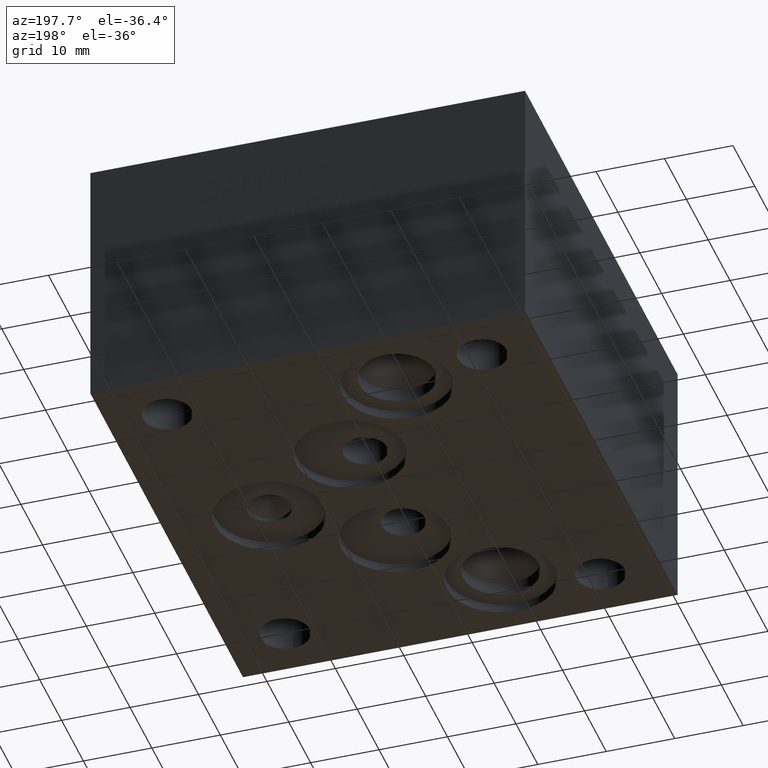
[diagram: clean part render]
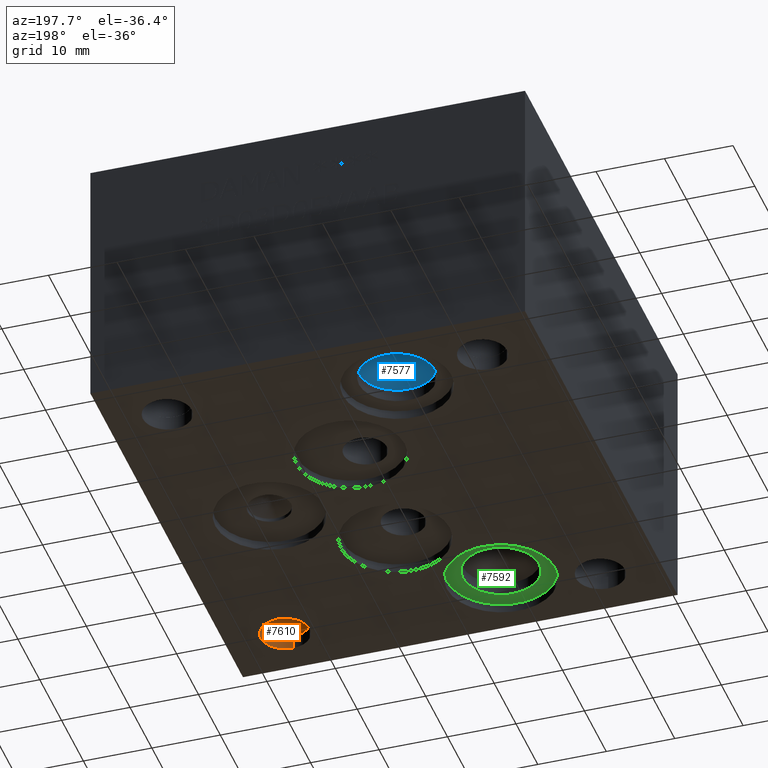
[diagram: same view with three faces highlighted in distinct colors, each labeled with its STEP entity id]
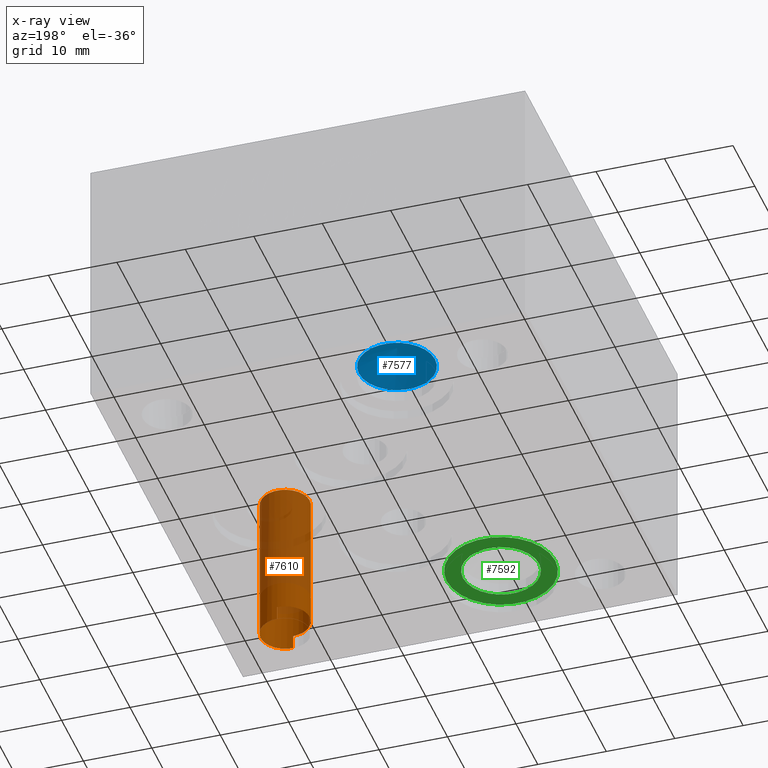
[diagram: x-ray of the same camera — body ghosted, the three highlighted faces saturated]
A machine part, auxiliary view with three faces highlighted in distinct colors.
The next image is the same camera in x-ray (body ghosted, the three faces saturated) — at least one of them is partly hidden behind the body in this view.
Their STEP definitions:

[orange] entity #7610 — the highlighted cylindrical surface (bore or boss wall) has radius 3.5687 mm, axis along (0, 0, 1).
#31=CYLINDRICAL_SURFACE('',#7970,3.5687);
#77=CIRCLE('',#7951,3.5687);
#86=CIRCLE('',#7967,3.5687);
#382=B_SPLINE_CURVE_WITH_KNOTS('',3,(#12673,#12674,#12675,#12676,#12677,
#12678,#12679,#12680,#12681,#12682,#12683,#12684),.UNSPECIFIED.,.F.,.F.,
(4,2,2,2,2,4),(0.538033015975326,0.538350466578014,0.672685361836246,0.807020257094478,
0.941223056318459,1.07542585554244),.UNSPECIFIED.);
#383=B_SPLINE_CURVE_WITH_KNOTS('',3,(#12687,#12688,#12689,#12690,#12691,
#12692,#12693,#12694,#12695,#12696,#12697,#12698),.UNSPECIFIED.,.F.,.F.,
(4,2,2,2,2,4),(1.07542585554244,1.20962865476642,1.3438314539904,1.47816634924863,
1.61250124450687,1.61281869510955),.UNSPECIFIED.);
#845=FACE_OUTER_BOUND('',#1288,.T.);
#1288=EDGE_LOOP('',(#6537,#6538,#6539,#6540,#6541,#6542,#6543,#6544));
#2066=LINE('',#12701,#2837);
#2067=LINE('',#12703,#2838);
#2082=LINE('',#12852,#2853);
#2837=VECTOR('',#9305,10.);
#2838=VECTOR('',#9306,10.);
#2853=VECTOR('',#9397,3.5687);
#3506=VERTEX_POINT('',#12671);
#3507=VERTEX_POINT('',#12672);
#3508=VERTEX_POINT('',#12685);
#3509=VERTEX_POINT('',#12700);
#3510=VERTEX_POINT('',#12702);
#3535=VERTEX_POINT('',#12845);
#4506=EDGE_CURVE('',#3506,#3507,#382,.T.);
#4508=EDGE_CURVE('',#3507,#3508,#383,.T.);
#4509=EDGE_CURVE('',#3508,#3509,#2066,.T.);
#4510=EDGE_CURVE('',#3510,#3506,#2067,.T.);
#4535=EDGE_CURVE('',#3510,#3509,#77,.T.);
#4548=EDGE_CURVE('',#3535,#3535,#86,.T.);
#4551=EDGE_CURVE('',#3535,#3507,#2082,.T.);
#6537=ORIENTED_EDGE('',*,*,#4548,.T.);
#6538=ORIENTED_EDGE('',*,*,#4551,.T.);
#6539=ORIENTED_EDGE('',*,*,#4508,.T.);
#6540=ORIENTED_EDGE('',*,*,#4509,.T.);
#6541=ORIENTED_EDGE('',*,*,#4535,.F.);
#6542=ORIENTED_EDGE('',*,*,#4510,.T.);
#6543=ORIENTED_EDGE('',*,*,#4506,.T.);
#6544=ORIENTED_EDGE('',*,*,#4551,.F.);
#7610=ADVANCED_FACE('',(#845),#31,.F.);
#7951=AXIS2_PLACEMENT_3D('',#12818,#9352,#9353);
#7967=AXIS2_PLACEMENT_3D('',#12846,#9388,#9389);
#7970=AXIS2_PLACEMENT_3D('',#12851,#9395,#9396);
#9305=DIRECTION('',(0.,0.,-1.));
#9306=DIRECTION('',(0.,0.,1.));
#9352=DIRECTION('center_axis',(0.,0.,1.));
#9353=DIRECTION('ref_axis',(1.,0.,0.));
#9388=DIRECTION('center_axis',(0.,0.,1.));
#9389=DIRECTION('ref_axis',(1.,0.,0.));
#9395=DIRECTION('center_axis',(0.,0.,1.));
#9396=DIRECTION('ref_axis',(1.,0.,0.));
#9397=DIRECTION('',(0.,0.,-1.));
#12671=CARTESIAN_POINT('',(54.790975,4.38150141236683,2.06039));
#12672=CARTESIAN_POINT('',(51.22545,7.9502,2.06405617420935));
#12673=CARTESIAN_POINT('Ctrl Pts',(54.790975,4.38150141236683,2.06039));
#12674=CARTESIAN_POINT('Ctrl Pts',(54.7899165000759,4.38150235409311,2.06039108741142));
#12675=CARTESIAN_POINT('Ctrl Pts',(54.7888581664421,4.38150376660925,2.06039217465287));
#12676=CARTESIAN_POINT('Ctrl Pts',(54.3400179609623,4.38230241592601,2.06085327505089));
#12677=CARTESIAN_POINT('Ctrl Pts',(53.8625270240116,4.47258051978984,2.06134397868591));
#12678=CARTESIAN_POINT('Ctrl Pts',(52.9843962434282,4.83787772248742,2.0622467101523));
#12679=CARTESIAN_POINT('Ctrl Pts',(52.5837564003666,5.11289682271574,2.06265872917889));
#12680=CARTESIAN_POINT('Ctrl Pts',(51.951604093075,5.74664201108035,2.06330896651219));
#12681=CARTESIAN_POINT('Ctrl Pts',(51.6777811021675,6.14753833325503,2.06359070416672));
#12682=CARTESIAN_POINT('Ctrl Pts',(51.3147040549283,7.02564599538287,2.06396431242518));
#12683=CARTESIAN_POINT('Ctrl Pts',(51.22545,7.50285733592006,2.06405617420935));
#12684=CARTESIAN_POINT('Ctrl Pts',(51.22545,7.9502,2.06405617420935));
#12685=CARTESIAN_POINT('',(54.790975,11.5188985876332,2.06039));
#12687=CARTESIAN_POINT('Ctrl Pts',(51.22545,7.9502,2.06405617420935));
#12688=CARTESIAN_POINT('Ctrl Pts',(51.22545,8.39754266407994,2.06405617420935));
#12689=CARTESIAN_POINT('Ctrl Pts',(51.3147040549282,8.87475400461713,2.06396431242517));
#12690=CARTESIAN_POINT('Ctrl Pts',(51.6777811021674,9.75286166674497,2.06359070416671));
#12691=CARTESIAN_POINT('Ctrl Pts',(51.951604093075,10.1537579889197,2.06330896651217));
#12692=CARTESIAN_POINT('Ctrl Pts',(52.5837564003666,10.7875031772843,2.06265872917888));
#12693=CARTESIAN_POINT('Ctrl Pts',(52.9843962434282,11.0625222775126,2.0622467101523));
#12694=CARTESIAN_POINT('Ctrl Pts',(53.8625270240116,11.4278194802102,2.06134397868591));
#12695=CARTESIAN_POINT('Ctrl Pts',(54.3400179609623,11.518097584074,2.06085327505089));
#12696=CARTESIAN_POINT('Ctrl Pts',(54.7888581664421,11.5188962333908,2.06039217465287));
#12697=CARTESIAN_POINT('Ctrl Pts',(54.7899165000759,11.5188976459069,2.06039108741142));
#12698=CARTESIAN_POINT('Ctrl Pts',(54.790975,11.5188985876332,2.06039));
#12700=CARTESIAN_POINT('',(54.790975,11.5188985876332,0.));
#12701=CARTESIAN_POINT('',(54.790975,11.5188985876332,1.030195));
#12702=CARTESIAN_POINT('',(54.790975,4.38150141236683,0.));
#12703=CARTESIAN_POINT('',(54.790975,4.38150141236683,1.030195));
#12818=CARTESIAN_POINT('Origin',(54.79415,7.9502,0.));
#12845=CARTESIAN_POINT('',(51.22545,7.9502,22.225));
#12846=CARTESIAN_POINT('Origin',(54.79415,7.9502,22.225));
#12851=CARTESIAN_POINT('Origin',(54.79415,7.9502,-63.6982440909469));
#12852=CARTESIAN_POINT('',(51.22545,7.9502,-63.6982440909469));

[blue] entity #7577 — the highlighted conical surface has half-angle 60 deg.
#47=CIRCLE('',#7897,5.5626);
#115=CONICAL_SURFACE('',#7896,2.7813,1.0471975511966);
#812=FACE_OUTER_BOUND('',#1238,.T.);
#1238=EDGE_LOOP('',(#6407,#6408,#6409));
#2055=LINE('',#12608,#2826);
#2826=VECTOR('',#9224,2.7813);
#3485=VERTEX_POINT('',#12605);
#3486=VERTEX_POINT('',#12607);
#4477=EDGE_CURVE('',#3485,#3485,#47,.T.);
#4478=EDGE_CURVE('',#3485,#3486,#2055,.T.);
#6407=ORIENTED_EDGE('',*,*,#4477,.T.);
#6408=ORIENTED_EDGE('',*,*,#4478,.T.);
#6409=ORIENTED_EDGE('',*,*,#4478,.F.);
#7577=ADVANCED_FACE('',(#812),#115,.F.);
#7896=AXIS2_PLACEMENT_3D('',#12604,#9220,#9221);
#7897=AXIS2_PLACEMENT_3D('',#12606,#9222,#9223);
#9220=DIRECTION('center_axis',(0.,0.,-1.));
#9221=DIRECTION('ref_axis',(1.,0.,0.));
#9222=DIRECTION('center_axis',(0.,0.,-1.));
#9223=DIRECTION('ref_axis',(1.,0.,0.));
#9224=DIRECTION('',(0.866025403784439,-1.06057523872491E-16,0.5));
#12604=CARTESIAN_POINT('Origin',(22.2504,58.7502,4.81735430369711));
#12605=CARTESIAN_POINT('',(16.6878,58.7502,3.21157));
#12606=CARTESIAN_POINT('Origin',(22.2504,58.7502,3.21157));
#12607=CARTESIAN_POINT('',(22.2504,58.7502,6.42313860739421));
#12608=CARTESIAN_POINT('',(19.4691,58.7502,4.81735430369711));

[green] entity #7592 — the highlighted planar face has unit normal (0, 0, -1).
#50=CIRCLE('',#7903,5.5626);
#64=CIRCLE('',#7928,7.9375);
#163=FACE_BOUND('',#1258,.T.);
#827=FACE_OUTER_BOUND('',#1257,.T.);
#1257=EDGE_LOOP('',(#6456));
#1258=EDGE_LOOP('',(#6457));
#3490=VERTEX_POINT('',#12619);
#3505=VERTEX_POINT('',#12666);
#4483=EDGE_CURVE('',#3490,#3490,#50,.T.);
#4505=EDGE_CURVE('',#3505,#3505,#64,.T.);
#6456=ORIENTED_EDGE('',*,*,#4505,.T.);
#6457=ORIENTED_EDGE('',*,*,#4483,.T.);
#6912=PLANE('',#7929);
#7592=ADVANCED_FACE('',(#827,#163),#6912,.T.);
#7903=AXIS2_PLACEMENT_3D('',#12620,#9237,#9238);
#7928=AXIS2_PLACEMENT_3D('',#12668,#9295,#9296);
#7929=AXIS2_PLACEMENT_3D('',#12669,#9297,#9298);
#9237=DIRECTION('center_axis',(0.,0.,1.));
#9238=DIRECTION('ref_axis',(1.,0.,0.));
#9295=DIRECTION('center_axis',(0.,0.,-1.));
#9296=DIRECTION('ref_axis',(1.,0.,0.));
#9297=DIRECTION('center_axis',(0.,0.,-1.));
#9298=DIRECTION('ref_axis',(1.,0.,0.));
#12619=CARTESIAN_POINT('',(16.6878,11.1252,1.3208));
#12620=CARTESIAN_POINT('Origin',(22.2504,11.1252,1.3208));
#12666=CARTESIAN_POINT('',(14.3129,11.1252,1.3208));
#12668=CARTESIAN_POINT('Origin',(22.2504,11.1252,1.3208));
#12669=CARTESIAN_POINT('Origin',(22.2504,11.1252,1.3208));